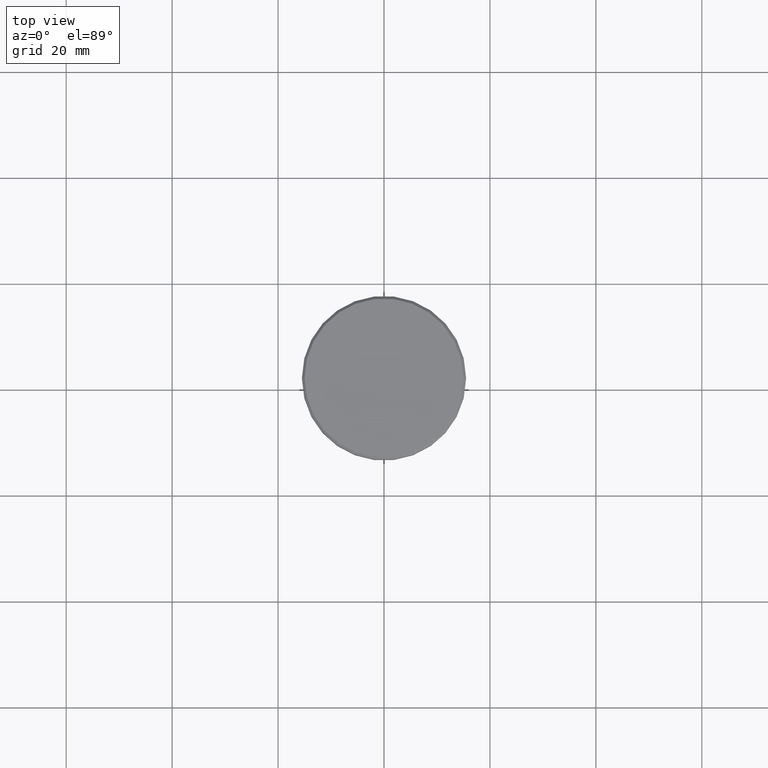
[diagram: clean part render]
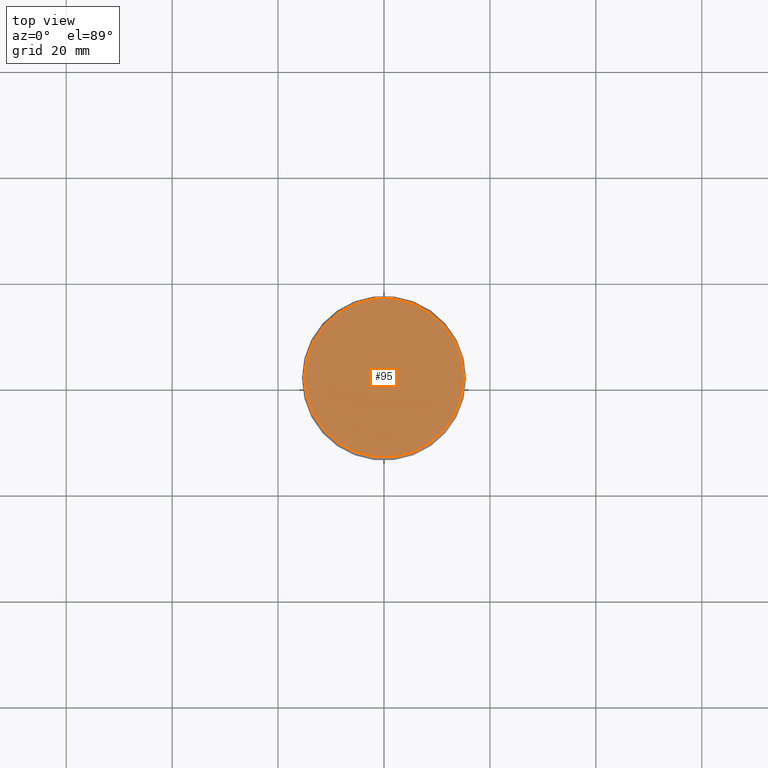
[diagram: same view with one face highlighted and labeled with its STEP entity id]
A machine part, top view. The second image highlights one B-rep face of the part: STEP entity #95.
In plain terms, the highlighted planar face has unit normal (0, -0, 1).
Its self-contained STEP definition (entity closure, byte-faithful):
#60 = ORIENTED_EDGE ( 'NONE', *, *, #216, .T. ) ;
#95 = ADVANCED_FACE ( 'NONE', ( #219 ), #233, .T. ) ;
#105 = CIRCLE ( 'NONE', #1104, 15.00000000000002665 ) ;
#121 = DIRECTION ( 'NONE',  ( 1.000000000000000000, 0.000000000000000000, 0.000000000000000000 ) ) ;
#126 = DIRECTION ( 'NONE',  ( 0.000000000000000000, -0.000000000000000000, 1.000000000000000000 ) ) ;
#138 = CARTESIAN_POINT ( 'NONE',  ( 15.00000000000002665, 1.867586368699715348E-15, 0.000000000000000000 ) ) ;
#216 = EDGE_CURVE ( 'NONE', #283, #1052, #105, .T. ) ;
#219 = FACE_OUTER_BOUND ( 'NONE', #740, .T. ) ;
#233 = PLANE ( 'NONE',  #1061 ) ;
#283 = VERTEX_POINT ( 'NONE', #974 ) ;
#440 = DIRECTION ( 'NONE',  ( -0.000000000000000000, -0.000000000000000000, 1.000000000000000000 ) ) ;
#528 = CARTESIAN_POINT ( 'NONE',  ( 0.000000000000000000, 0.000000000000000000, 0.000000000000000000 ) ) ;
#740 = EDGE_LOOP ( 'NONE', ( #60, #1128 ) ) ;
#769 = DIRECTION ( 'NONE',  ( 1.000000000000000000, 0.000000000000000000, 0.000000000000000000 ) ) ;
#797 = CIRCLE ( 'NONE', #836, 15.00000000000002665 ) ;
#836 = AXIS2_PLACEMENT_3D ( 'NONE', #528, #440, #1165 ) ;
#926 = CARTESIAN_POINT ( 'NONE',  ( 0.000000000000000000, 0.000000000000000000, 0.000000000000000000 ) ) ;
#930 = DIRECTION ( 'NONE',  ( -0.000000000000000000, -0.000000000000000000, 1.000000000000000000 ) ) ;
#974 = CARTESIAN_POINT ( 'NONE',  ( -15.00000000000002665, 0.000000000000000000, 0.000000000000000000 ) ) ;
#1052 = VERTEX_POINT ( 'NONE', #138 ) ;
#1061 = AXIS2_PLACEMENT_3D ( 'NONE', #1138, #126, #769 ) ;
#1104 = AXIS2_PLACEMENT_3D ( 'NONE', #926, #930, #121 ) ;
#1128 = ORIENTED_EDGE ( 'NONE', *, *, #1172, .T. ) ;
#1138 = CARTESIAN_POINT ( 'NONE',  ( 0.000000000000000000, 0.000000000000000000, 0.000000000000000000 ) ) ;
#1165 = DIRECTION ( 'NONE',  ( 1.000000000000000000, 0.000000000000000000, 0.000000000000000000 ) ) ;
#1172 = EDGE_CURVE ( 'NONE', #1052, #283, #797, .T. ) ;